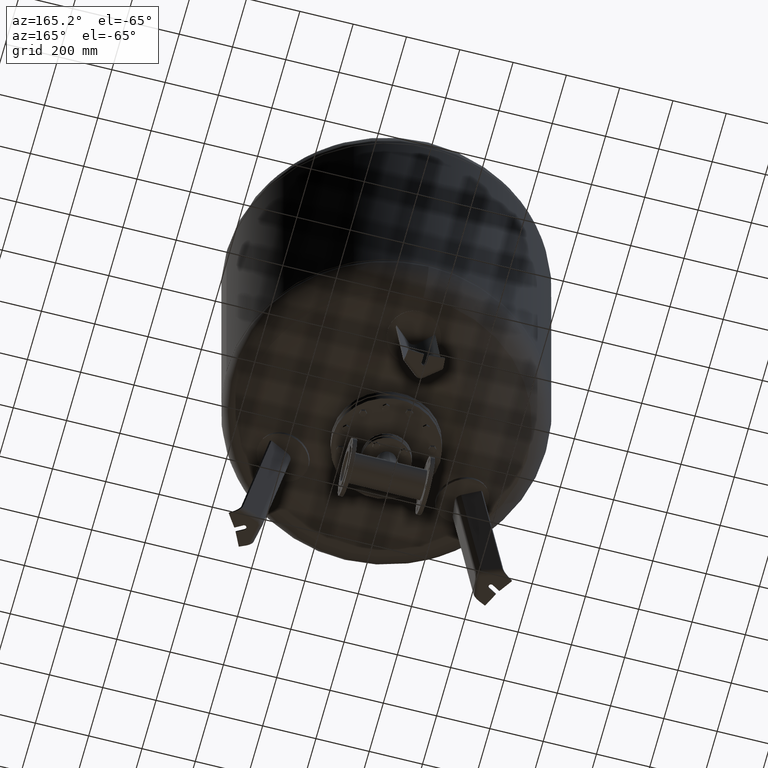
[diagram: clean part render]
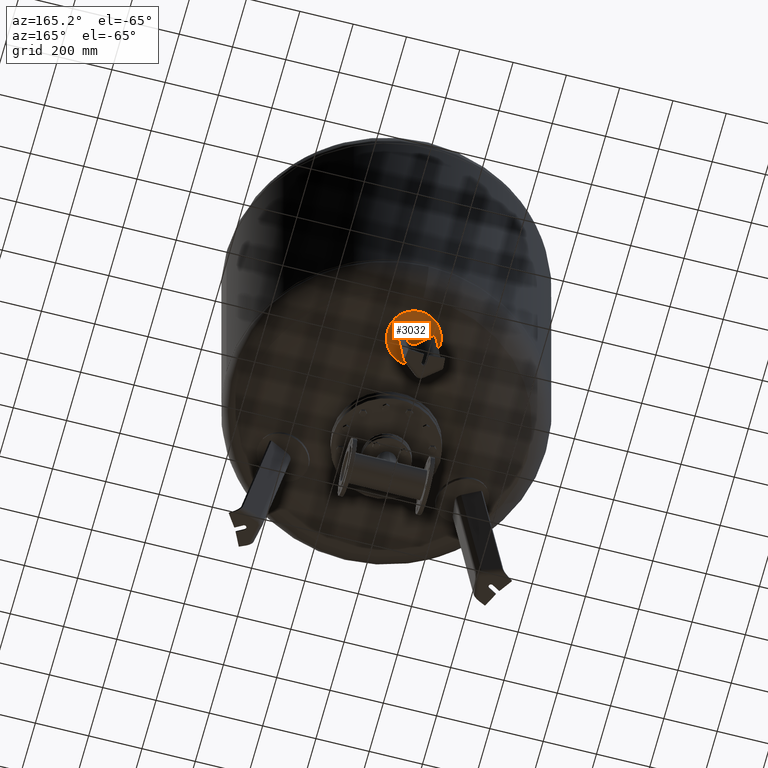
[diagram: same view with one face highlighted and labeled with its STEP entity id]
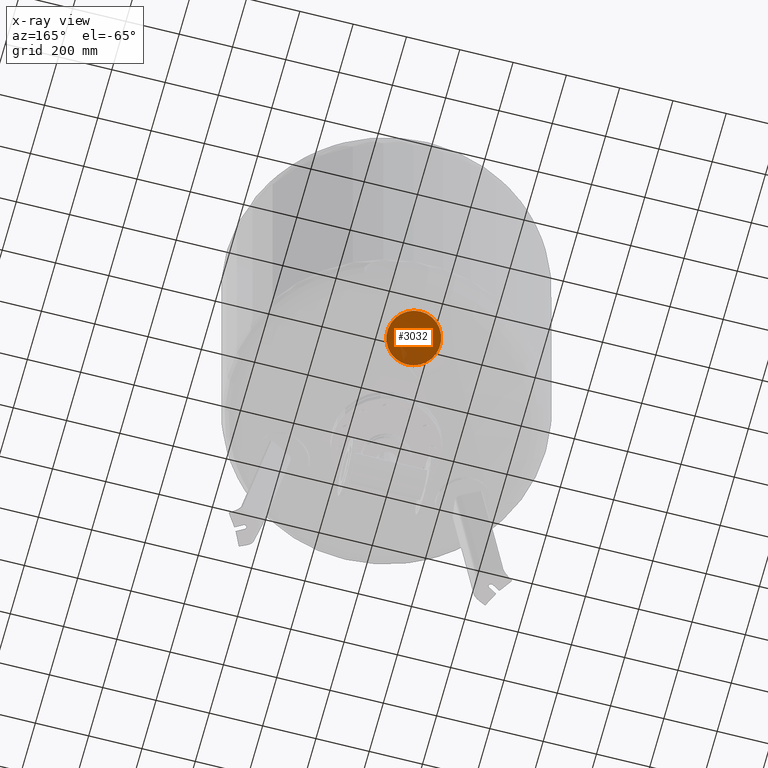
[diagram: x-ray of the same camera — body ghosted, the highlighted face saturated]
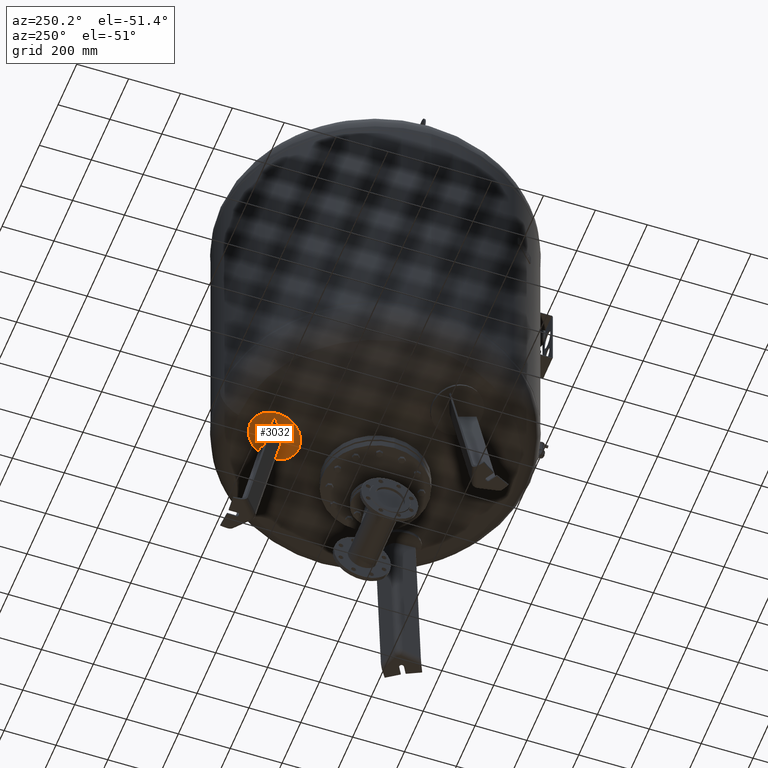
[diagram: same view with one face highlighted and labeled with its STEP entity id]
A machine part, auxiliary view. The second image highlights one B-rep face of the part: STEP entity #3032.
The next image is the same camera in x-ray: the body ghosted, the highlighted face saturated — about 13% of this face is hidden behind the body in this view.
A second angle (auxiliary view) of the same face is appended — the face is thin or edge-on in the first view.
In plain terms, the highlighted spherical surface has radius 1006 mm.
Its self-contained STEP definition (entity closure, byte-faithful):
#2940=CARTESIAN_POINT('',(-0.165533304317183,294.672642996865650,486.033440505856840));
#2941=VERTEX_POINT('',#2940);
#2950=CARTESIAN_POINT('',(-0.165533304317090,483.776358116728890,551.147071397288300));
#2951=VERTEX_POINT('',#2950);
#2952=CARTESIAN_POINT('',(-0.165533304317143,389.224500556797350,518.590255951572660));
#2953=DIRECTION('',(1.515581E-016,0.325568154457157,-0.945518575599317));
#2954=DIRECTION('',(-4.007835E-016,-0.945518575599317,-0.325568154457157));
#2955=AXIS2_PLACEMENT_3D('',#2952,#2953,#2954);
#2956=CIRCLE('',#2955,100.0);
#2957=EDGE_CURVE('',#2951,#2941,#2956,.T.);
#3013=CARTESIAN_POINT('',(-0.165533304317143,389.224500556797350,518.590255951572660));
#3014=DIRECTION('',(1.515581E-016,0.325568154457157,-0.945518575599317));
#3015=DIRECTION('',(-4.007835E-016,-0.945518575599317,-0.325568154457157));
#3016=AXIS2_PLACEMENT_3D('',#3013,#3014,#3015);
#3017=CIRCLE('',#3016,100.0);
#3018=EDGE_CURVE('',#2941,#2951,#3017,.T.);
#3023=CARTESIAN_POINT('',(-0.165533304317294,63.325086243934038,1465.070880027170500));
#3024=DIRECTION('',(-1.0,0.0,0.0));
#3025=DIRECTION('',(-4.007835E-016,-0.945518575599317,-0.325568154457157));
#3026=AXIS2_PLACEMENT_3D('',#3023,#3024,#3025);
#3027=SPHERICAL_SURFACE('',#3026,1006.0);
#3028=ORIENTED_EDGE('',*,*,#3018,.T.);
#3029=ORIENTED_EDGE('',*,*,#2957,.T.);
#3030=EDGE_LOOP('',(#3028,#3029));
#3031=FACE_OUTER_BOUND('',#3030,.T.);
#3032=ADVANCED_FACE('',(#3031),#3027,.T.);